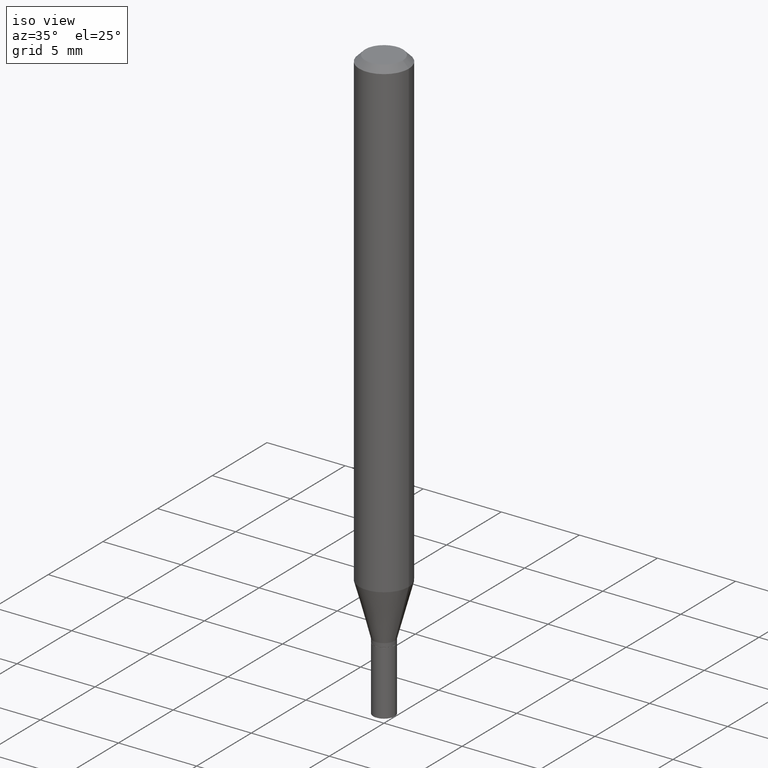
[diagram: clean part render]
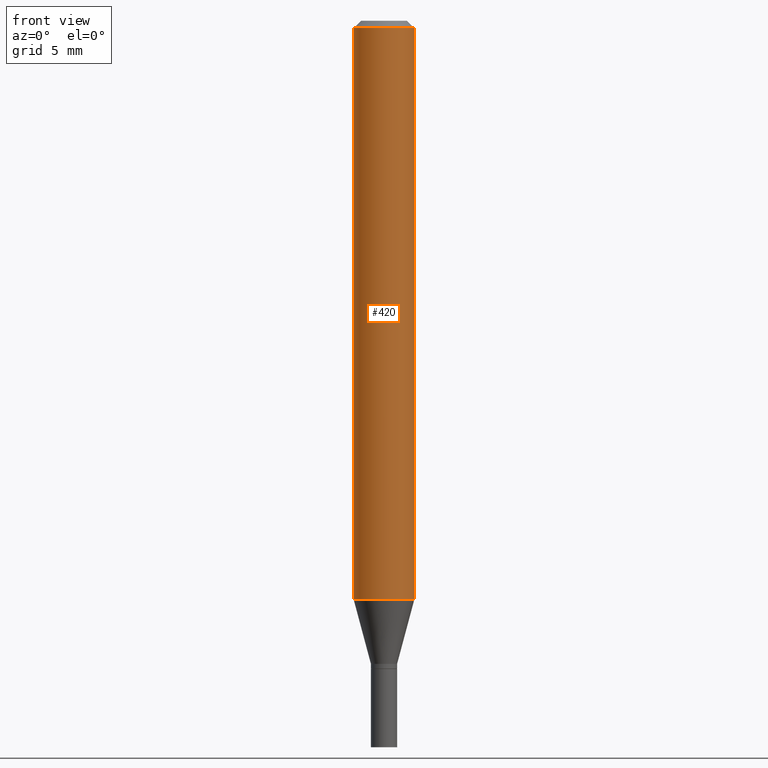
[diagram: tour spotlight — one face highlighted and labeled with its STEP entity id]
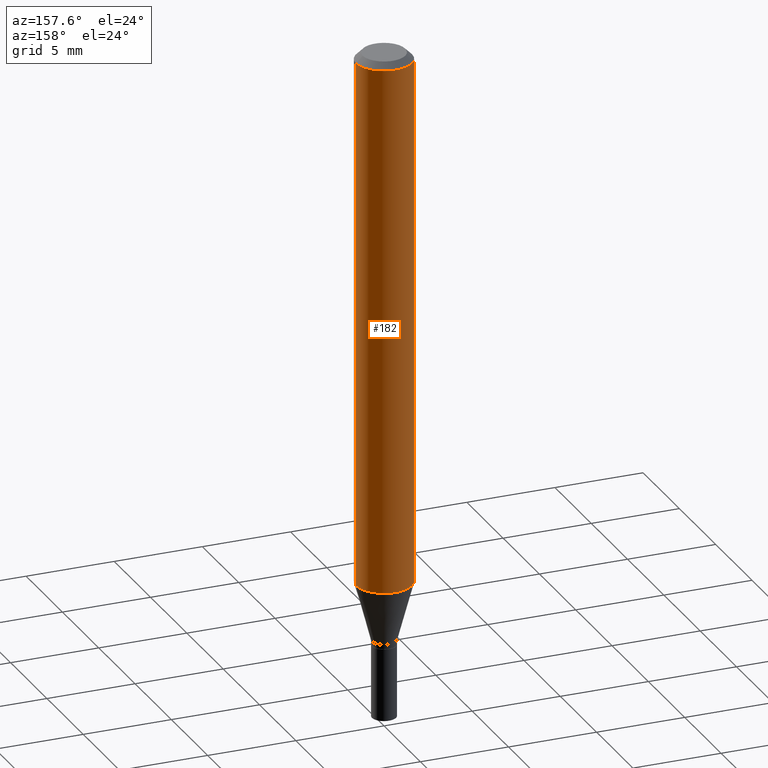
[diagram: tour spotlight — one face highlighted and labeled with its STEP entity id]
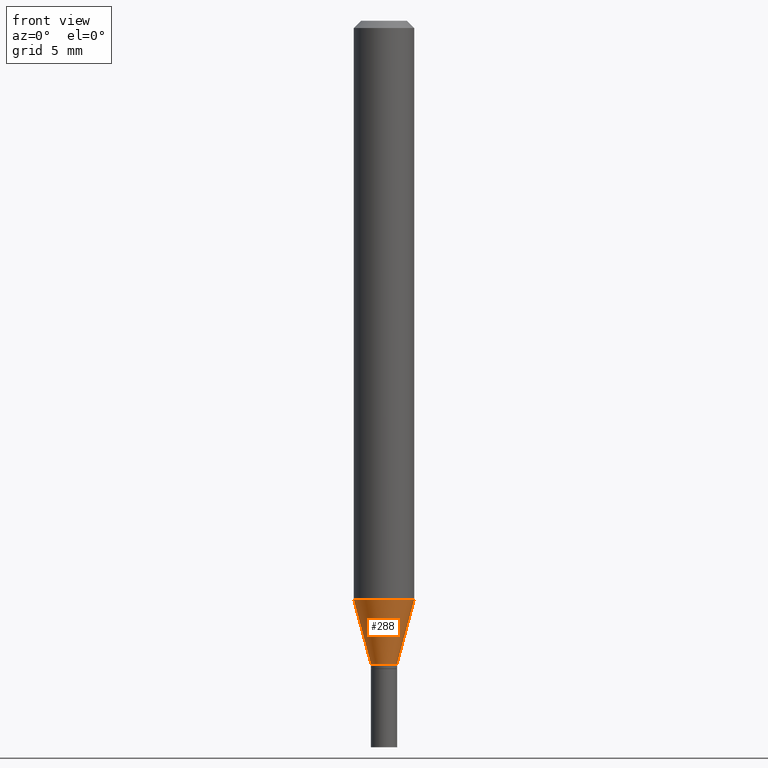
[diagram: tour spotlight — one face highlighted and labeled with its STEP entity id]
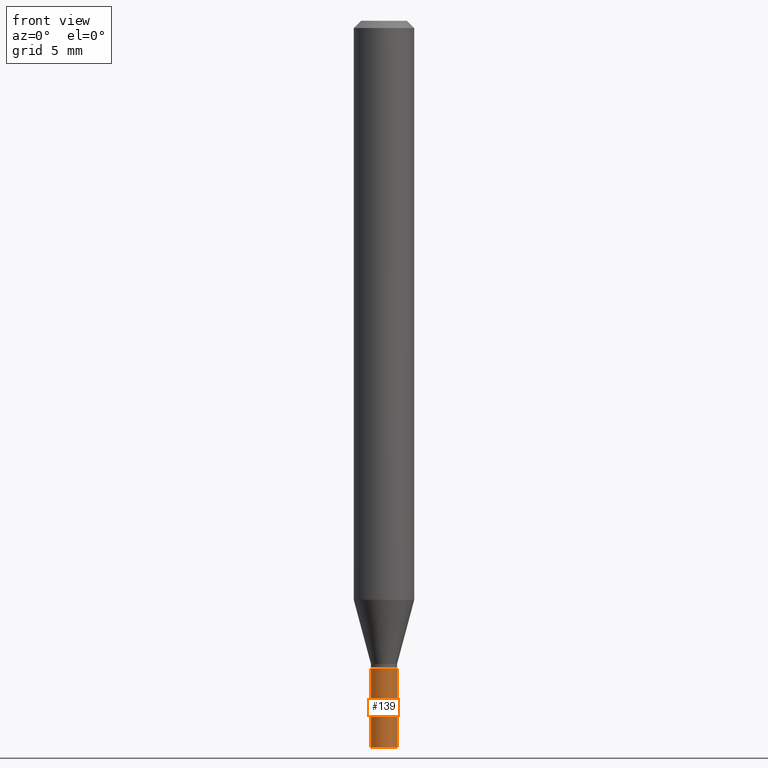
[diagram: tour spotlight — one face highlighted and labeled with its STEP entity id]
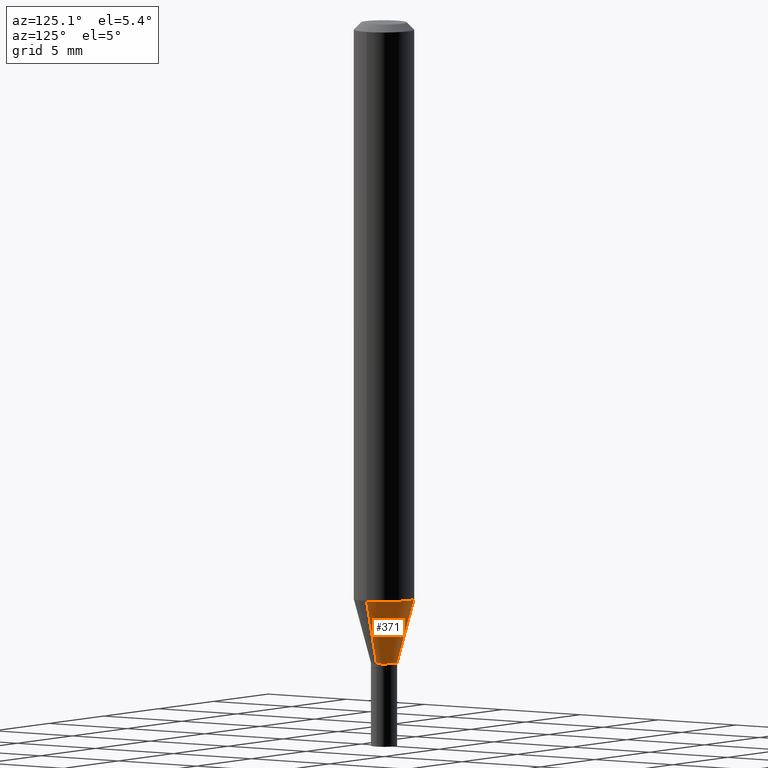
[diagram: tour spotlight — one face highlighted and labeled with its STEP entity id]
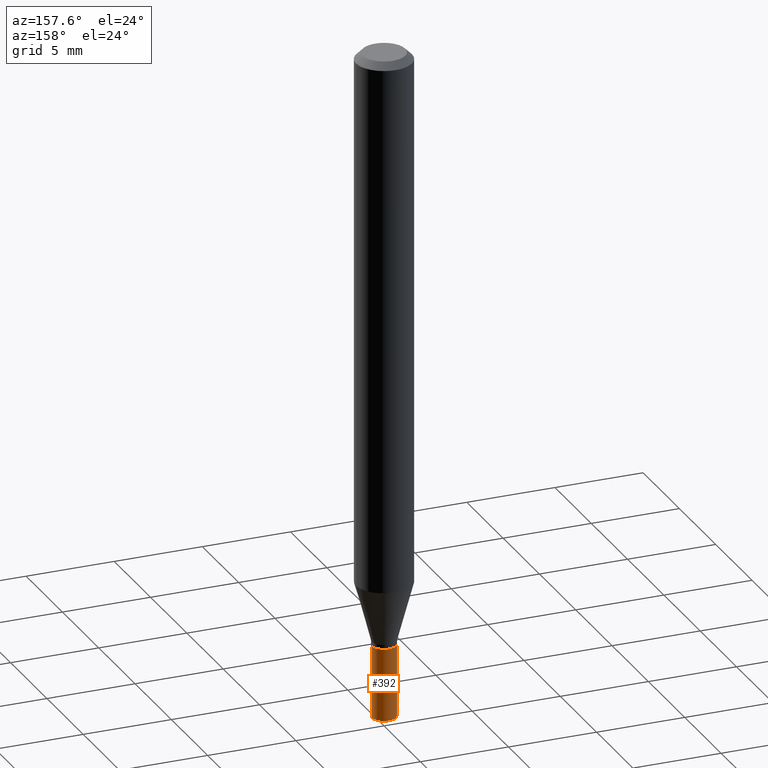
[diagram: tour spotlight — one face highlighted and labeled with its STEP entity id]
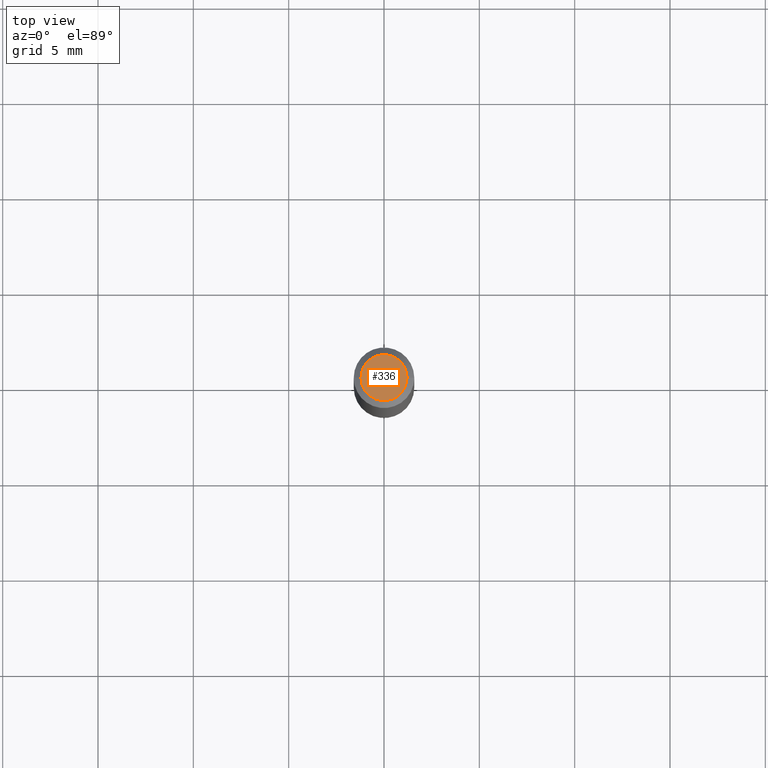
[diagram: tour spotlight — one face highlighted and labeled with its STEP entity id]
A machine part: a face-by-face anatomy tour. The part has 16 B-rep faces; the first image is the clean iso view, then the 7 largest visible faces are spotlighted one at a time (largest first), each with its STEP entity span.

Face 1 — front view, entity #420. In plain terms, the highlighted cylindrical surface (edge-blend (fillet) strip) has radius 1.5875 mm, axis along (-0, 0, 1).
Definition (entity closure, byte-faithful):
#9 = VERTEX_POINT ( 'NONE', #70 ) ;
#12 = FACE_OUTER_BOUND ( 'NONE', #453, .T. ) ;
#22 = VERTEX_POINT ( 'NONE', #149 ) ;
#24 = CYLINDRICAL_SURFACE ( 'NONE', #152, 0.06250000000000000000 ) ;
#26 = EDGE_CURVE ( 'NONE', #85, #22, #224, .T. ) ;
#27 = CIRCLE ( 'NONE', #217, 0.06250000000000000000 ) ;
#46 = EDGE_CURVE ( 'NONE', #296, #22, #461, .T. ) ;
#65 = EDGE_CURVE ( 'NONE', #9, #296, #127, .T. ) ;
#70 = CARTESIAN_POINT ( 'NONE',  ( -0.06250000000000000000, -3.730019314000071411E-15, -1.195512196331304677 ) ) ;
#79 = DIRECTION ( 'NONE',  ( 1.000000000000000000, -6.982962677686266711E-15, 4.876176775795935793E-29 ) ) ;
#85 = VERTEX_POINT ( 'NONE', #97 ) ;
#97 = CARTESIAN_POINT ( 'NONE',  ( 0.06250000000000000000, -4.610543691205524908E-15, -1.195512196331304677 ) ) ;
#119 = CARTESIAN_POINT ( 'NONE',  ( 0.000000000000000000, 0.000000000000000000, 0.000000000000000000 ) ) ;
#127 = LINE ( 'NONE', #300, #464 ) ;
#141 = DIRECTION ( 'NONE',  ( 1.000000000000000000, -6.982962677686262766E-15, 0.000000000000000000 ) ) ;
#149 = CARTESIAN_POINT ( 'NONE',  ( 0.06250000000000000000, -4.888073874380388472E-16, -0.01499999999999999944 ) ) ;
#152 = AXIS2_PLACEMENT_3D ( 'NONE', #119, #450, #79 ) ;
#173 = DIRECTION ( 'NONE',  ( 1.000000000000000000, -6.982962677686266711E-15, 0.000000000000000000 ) ) ;
#189 = ORIENTED_EDGE ( 'NONE', *, *, #46, .F. ) ;
#197 = ORIENTED_EDGE ( 'NONE', *, *, #306, .T. ) ;
#217 = AXIS2_PLACEMENT_3D ( 'NONE', #331, #460, #141 ) ;
#224 = LINE ( 'NONE', #274, #311 ) ;
#235 = CARTESIAN_POINT ( 'NONE',  ( -0.06250000000000000000, -1.669151162116327740E-15, -0.01499999999999999944 ) ) ;
#243 = DIRECTION ( 'NONE',  ( -2.445468806185136597E-29, 3.491481338843145583E-15, 1.000000000000000000 ) ) ;
#246 = AXIS2_PLACEMENT_3D ( 'NONE', #379, #243, #173 ) ;
#274 = CARTESIAN_POINT ( 'NONE',  ( 0.06250000000000000000, -4.364351673553916694E-16, 3.047610484872459871E-30 ) ) ;
#296 = VERTEX_POINT ( 'NONE', #235 ) ;
#300 = CARTESIAN_POINT ( 'NONE',  ( -0.06250000000000000000, 4.440892098500626162E-16, -3.074334431409316114E-30 ) ) ;
#306 = EDGE_CURVE ( 'NONE', #9, #85, #27, .T. ) ;
#311 = VECTOR ( 'NONE', #404, 39.37007874015748143 ) ;
#319 = ORIENTED_EDGE ( 'NONE', *, *, #26, .T. ) ;
#331 = CARTESIAN_POINT ( 'NONE',  ( 2.923587783542086622E-29, -4.174108523850133238E-15, -1.195512196331304677 ) ) ;
#379 = CARTESIAN_POINT ( 'NONE',  ( 3.668203209277705088E-31, -5.237222008264718399E-17, -0.01499999999999999944 ) ) ;
#403 = ORIENTED_EDGE ( 'NONE', *, *, #65, .F. ) ;
#404 = DIRECTION ( 'NONE',  ( -2.445468806185136877E-29, 3.491481338843145188E-15, 1.000000000000000000 ) ) ;
#420 = ADVANCED_FACE ( 'NONE', ( #12 ), #24, .T. ) ;
#425 = DIRECTION ( 'NONE',  ( -2.445468806185136877E-29, 3.491481338843145188E-15, 1.000000000000000000 ) ) ;
#450 = DIRECTION ( 'NONE',  ( -2.445468806185136597E-29, 3.491481338843145583E-15, 1.000000000000000000 ) ) ;
#453 = EDGE_LOOP ( 'NONE', ( #403, #197, #319, #189 ) ) ;
#460 = DIRECTION ( 'NONE',  ( -2.445468806185136597E-29, 3.491481338843145583E-15, 1.000000000000000000 ) ) ;
#461 = CIRCLE ( 'NONE', #246, 0.06250000000000000000 ) ;
#464 = VECTOR ( 'NONE', #425, 39.37007874015748143 ) ;

Face 2 — auxiliary view, entity #182. In plain terms, the highlighted cylindrical surface (edge-blend (fillet) strip) has radius 1.5875 mm, axis along (-0, 0, 1).
Definition (entity closure, byte-faithful):
#9 = VERTEX_POINT ( 'NONE', #70 ) ;
#22 = VERTEX_POINT ( 'NONE', #149 ) ;
#26 = EDGE_CURVE ( 'NONE', #85, #22, #224, .T. ) ;
#45 = CARTESIAN_POINT ( 'NONE',  ( 3.668203209277705088E-31, -5.237222008264718399E-17, -0.01499999999999999944 ) ) ;
#47 = ORIENTED_EDGE ( 'NONE', *, *, #65, .T. ) ;
#51 = AXIS2_PLACEMENT_3D ( 'NONE', #123, #408, #445 ) ;
#55 = DIRECTION ( 'NONE',  ( -2.445468806185136597E-29, 3.491481338843145583E-15, 1.000000000000000000 ) ) ;
#59 = DIRECTION ( 'NONE',  ( 1.000000000000000000, -6.982962677686262766E-15, 0.000000000000000000 ) ) ;
#63 = CARTESIAN_POINT ( 'NONE',  ( 2.923587783542086622E-29, -4.174108523850133238E-15, -1.195512196331304677 ) ) ;
#64 = DIRECTION ( 'NONE',  ( -2.445468806185136597E-29, 3.491481338843145583E-15, 1.000000000000000000 ) ) ;
#65 = EDGE_CURVE ( 'NONE', #9, #296, #127, .T. ) ;
#70 = CARTESIAN_POINT ( 'NONE',  ( -0.06250000000000000000, -3.730019314000071411E-15, -1.195512196331304677 ) ) ;
#76 = CIRCLE ( 'NONE', #298, 0.06250000000000000000 ) ;
#81 = DIRECTION ( 'NONE',  ( 1.000000000000000000, -6.982962677686266711E-15, 0.000000000000000000 ) ) ;
#85 = VERTEX_POINT ( 'NONE', #97 ) ;
#97 = CARTESIAN_POINT ( 'NONE',  ( 0.06250000000000000000, -4.610543691205524908E-15, -1.195512196331304677 ) ) ;
#99 = EDGE_LOOP ( 'NONE', ( #110, #47, #314, #284 ) ) ;
#110 = ORIENTED_EDGE ( 'NONE', *, *, #390, .T. ) ;
#114 = EDGE_CURVE ( 'NONE', #22, #296, #76, .T. ) ;
#123 = CARTESIAN_POINT ( 'NONE',  ( 0.000000000000000000, 0.000000000000000000, 0.000000000000000000 ) ) ;
#127 = LINE ( 'NONE', #300, #464 ) ;
#149 = CARTESIAN_POINT ( 'NONE',  ( 0.06250000000000000000, -4.888073874380388472E-16, -0.01499999999999999944 ) ) ;
#182 = ADVANCED_FACE ( 'NONE', ( #232 ), #277, .T. ) ;
#224 = LINE ( 'NONE', #274, #311 ) ;
#232 = FACE_OUTER_BOUND ( 'NONE', #99, .T. ) ;
#235 = CARTESIAN_POINT ( 'NONE',  ( -0.06250000000000000000, -1.669151162116327740E-15, -0.01499999999999999944 ) ) ;
#274 = CARTESIAN_POINT ( 'NONE',  ( 0.06250000000000000000, -4.364351673553916694E-16, 3.047610484872459871E-30 ) ) ;
#277 = CYLINDRICAL_SURFACE ( 'NONE', #51, 0.06250000000000000000 ) ;
#284 = ORIENTED_EDGE ( 'NONE', *, *, #26, .F. ) ;
#296 = VERTEX_POINT ( 'NONE', #235 ) ;
#298 = AXIS2_PLACEMENT_3D ( 'NONE', #45, #55, #81 ) ;
#300 = CARTESIAN_POINT ( 'NONE',  ( -0.06250000000000000000, 4.440892098500626162E-16, -3.074334431409316114E-30 ) ) ;
#308 = AXIS2_PLACEMENT_3D ( 'NONE', #63, #64, #59 ) ;
#311 = VECTOR ( 'NONE', #404, 39.37007874015748143 ) ;
#314 = ORIENTED_EDGE ( 'NONE', *, *, #114, .F. ) ;
#390 = EDGE_CURVE ( 'NONE', #85, #9, #452, .T. ) ;
#404 = DIRECTION ( 'NONE',  ( -2.445468806185136877E-29, 3.491481338843145188E-15, 1.000000000000000000 ) ) ;
#408 = DIRECTION ( 'NONE',  ( -2.445468806185136597E-29, 3.491481338843145583E-15, 1.000000000000000000 ) ) ;
#425 = DIRECTION ( 'NONE',  ( -2.445468806185136877E-29, 3.491481338843145188E-15, 1.000000000000000000 ) ) ;
#445 = DIRECTION ( 'NONE',  ( 1.000000000000000000, -6.982962677686266711E-15, 4.876176775795935793E-29 ) ) ;
#452 = CIRCLE ( 'NONE', #308, 0.06250000000000000000 ) ;
#464 = VECTOR ( 'NONE', #425, 39.37007874015748143 ) ;

Face 3 — front view, entity #288. In plain terms, the highlighted conical surface has half-angle 15 deg.
Definition (entity closure, byte-faithful):
#9 = VERTEX_POINT ( 'NONE', #70 ) ;
#10 = EDGE_CURVE ( 'NONE', #275, #85, #435, .T. ) ;
#27 = CIRCLE ( 'NONE', #217, 0.06250000000000000000 ) ;
#70 = CARTESIAN_POINT ( 'NONE',  ( -0.06250000000000000000, -3.730019314000071411E-15, -1.195512196331304677 ) ) ;
#82 = DIRECTION ( 'NONE',  ( -2.445468806185136597E-29, 3.491481338843145583E-15, 1.000000000000000000 ) ) ;
#85 = VERTEX_POINT ( 'NONE', #97 ) ;
#92 = DIRECTION ( 'NONE',  ( 1.000000000000000000, -6.982962677686279332E-15, 0.000000000000000000 ) ) ;
#97 = CARTESIAN_POINT ( 'NONE',  ( 0.06250000000000000000, -4.610543691205524908E-15, -1.195512196331304677 ) ) ;
#141 = DIRECTION ( 'NONE',  ( 1.000000000000000000, -6.982962677686262766E-15, 0.000000000000000000 ) ) ;
#168 = FACE_OUTER_BOUND ( 'NONE', #293, .T. ) ;
#171 = VECTOR ( 'NONE', #291, 39.37007874015748854 ) ;
#193 = EDGE_CURVE ( 'NONE', #377, #275, #229, .T. ) ;
#198 = VECTOR ( 'NONE', #270, 39.37007874015748854 ) ;
#203 = DIRECTION ( 'NONE',  ( -2.445468806185136597E-29, 3.491481338843145583E-15, 1.000000000000000000 ) ) ;
#207 = ORIENTED_EDGE ( 'NONE', *, *, #245, .F. ) ;
#216 = ORIENTED_EDGE ( 'NONE', *, *, #193, .T. ) ;
#217 = AXIS2_PLACEMENT_3D ( 'NONE', #331, #460, #141 ) ;
#220 = CARTESIAN_POINT ( 'NONE',  ( 3.247582574613861342E-29, -4.636687217983698072E-15, -1.328000000000000069 ) ) ;
#229 = CIRCLE ( 'NONE', #271, 0.02699999999999992684 ) ;
#241 = CARTESIAN_POINT ( 'NONE',  ( -0.02699999999999992684, -4.087429996664271131E-15, -1.328000000000000069 ) ) ;
#245 = EDGE_CURVE ( 'NONE', #377, #9, #356, .T. ) ;
#270 = DIRECTION ( 'NONE',  ( 0.2588190451025207395, 1.565188264969626109E-15, 0.9659258262890682012 ) ) ;
#271 = AXIS2_PLACEMENT_3D ( 'NONE', #220, #203, #92 ) ;
#275 = VERTEX_POINT ( 'NONE', #406 ) ;
#283 = CARTESIAN_POINT ( 'NONE',  ( 3.247582574613861342E-29, -4.636687217983698072E-15, -1.328000000000000069 ) ) ;
#288 = ADVANCED_FACE ( 'NONE', ( #168 ), #368, .T. ) ;
#291 = DIRECTION ( 'NONE',  ( -0.2588190451025207395, 5.211531920934546309E-15, 0.9659258262890682012 ) ) ;
#293 = EDGE_LOOP ( 'NONE', ( #207, #216, #415, #432 ) ) ;
#306 = EDGE_CURVE ( 'NONE', #9, #85, #27, .T. ) ;
#327 = CARTESIAN_POINT ( 'NONE',  ( -0.02699999999999992684, -4.444840679328471640E-15, -1.328000000000000069 ) ) ;
#331 = CARTESIAN_POINT ( 'NONE',  ( 2.923587783542086622E-29, -4.174108523850133238E-15, -1.195512196331304677 ) ) ;
#356 = LINE ( 'NONE', #327, #171 ) ;
#365 = AXIS2_PLACEMENT_3D ( 'NONE', #283, #82, #455 ) ;
#368 = CONICAL_SURFACE ( 'NONE', #365, 0.02699999999999992684, 0.2617993877991494633 ) ;
#370 = CARTESIAN_POINT ( 'NONE',  ( 0.02699999999999992684, -4.825227210281226768E-15, -1.328000000000000069 ) ) ;
#377 = VERTEX_POINT ( 'NONE', #241 ) ;
#406 = CARTESIAN_POINT ( 'NONE',  ( 0.02699999999999992684, -4.825227210281226768E-15, -1.328000000000000069 ) ) ;
#415 = ORIENTED_EDGE ( 'NONE', *, *, #10, .T. ) ;
#432 = ORIENTED_EDGE ( 'NONE', *, *, #306, .F. ) ;
#435 = LINE ( 'NONE', #370, #198 ) ;
#455 = DIRECTION ( 'NONE',  ( 1.000000000000000000, -6.982962677686279332E-15, 0.000000000000000000 ) ) ;
#460 = DIRECTION ( 'NONE',  ( -2.445468806185136597E-29, 3.491481338843145583E-15, 1.000000000000000000 ) ) ;

Face 4 — front view, entity #139. In plain terms, the highlighted cylindrical surface (edge-blend (fillet) strip) has radius 0.6858 mm, axis along (-0, 0, 1).
Definition (entity closure, byte-faithful):
#1 = VERTEX_POINT ( 'NONE', #338 ) ;
#6 = CYLINDRICAL_SURFACE ( 'NONE', #419, 0.02699999999999999969 ) ;
#13 = DIRECTION ( 'NONE',  ( 1.000000000000000000, -6.982962677686261189E-15, 0.000000000000000000 ) ) ;
#17 = ORIENTED_EDGE ( 'NONE', *, *, #21, .T. ) ;
#19 = CARTESIAN_POINT ( 'NONE',  ( 3.272037262675712888E-29, -4.671602031372128143E-15, -1.338000000000000078 ) ) ;
#21 = EDGE_CURVE ( 'NONE', #449, #38, #451, .T. ) ;
#36 = AXIS2_PLACEMENT_3D ( 'NONE', #192, #43, #13 ) ;
#38 = VERTEX_POINT ( 'NONE', #196 ) ;
#43 = DIRECTION ( 'NONE',  ( -2.445468806185136597E-29, 3.491481338843145583E-15, 1.000000000000000000 ) ) ;
#50 = EDGE_CURVE ( 'NONE', #449, #265, #94, .T. ) ;
#57 = AXIS2_PLACEMENT_3D ( 'NONE', #19, #304, #397 ) ;
#94 = LINE ( 'NONE', #352, #391 ) ;
#106 = EDGE_CURVE ( 'NONE', #38, #1, #226, .T. ) ;
#118 = FACE_OUTER_BOUND ( 'NONE', #163, .T. ) ;
#139 = ADVANCED_FACE ( 'NONE', ( #118 ), #6, .T. ) ;
#146 = EDGE_CURVE ( 'NONE', #265, #1, #340, .T. ) ;
#163 = EDGE_LOOP ( 'NONE', ( #201, #17, #359, #354 ) ) ;
#186 = DIRECTION ( 'NONE',  ( -2.445468806185136877E-29, 3.491481338843145188E-15, 1.000000000000000000 ) ) ;
#188 = CARTESIAN_POINT ( 'NONE',  ( 0.02699999999999999969, -1.885399922975291894E-16, 1.316567729464902510E-30 ) ) ;
#191 = DIRECTION ( 'NONE',  ( 1.000000000000000000, -6.982962677686266711E-15, 4.876176775795935232E-29 ) ) ;
#192 = CARTESIAN_POINT ( 'NONE',  ( 3.668203209277704895E-29, -5.237222008264718177E-15, -1.500000000000000222 ) ) ;
#196 = CARTESIAN_POINT ( 'NONE',  ( 0.02699999999999999969, -5.425762000562247662E-15, -1.500000000000000222 ) ) ;
#201 = ORIENTED_EDGE ( 'NONE', *, *, #50, .F. ) ;
#226 = LINE ( 'NONE', #188, #380 ) ;
#255 = CARTESIAN_POINT ( 'NONE',  ( -0.02699999999999999969, -4.762565481163196334E-15, -1.500000000000000222 ) ) ;
#265 = VERTEX_POINT ( 'NONE', #318 ) ;
#304 = DIRECTION ( 'NONE',  ( -2.445468806185136597E-29, 3.491481338843145583E-15, 1.000000000000000000 ) ) ;
#318 = CARTESIAN_POINT ( 'NONE',  ( -0.02699999999999999969, -4.762565481163196334E-15, -1.338000000000000078 ) ) ;
#338 = CARTESIAN_POINT ( 'NONE',  ( 0.02699999999999999969, -4.860142023669657629E-15, -1.338000000000000078 ) ) ;
#340 = CIRCLE ( 'NONE', #57, 0.02699999999999999969 ) ;
#352 = CARTESIAN_POINT ( 'NONE',  ( -0.02699999999999999969, 1.918465386552270480E-16, -1.328112474368824466E-30 ) ) ;
#354 = ORIENTED_EDGE ( 'NONE', *, *, #146, .F. ) ;
#359 = ORIENTED_EDGE ( 'NONE', *, *, #106, .T. ) ;
#378 = DIRECTION ( 'NONE',  ( -2.445468806185136597E-29, 3.491481338843145583E-15, 1.000000000000000000 ) ) ;
#380 = VECTOR ( 'NONE', #186, 39.37007874015748143 ) ;
#391 = VECTOR ( 'NONE', #447, 39.37007874015748143 ) ;
#397 = DIRECTION ( 'NONE',  ( 1.000000000000000000, -6.982962677686261189E-15, 0.000000000000000000 ) ) ;
#419 = AXIS2_PLACEMENT_3D ( 'NONE', #437, #378, #191 ) ;
#437 = CARTESIAN_POINT ( 'NONE',  ( 0.000000000000000000, 0.000000000000000000, 0.000000000000000000 ) ) ;
#447 = DIRECTION ( 'NONE',  ( -2.445468806185136877E-29, 3.491481338843145188E-15, 1.000000000000000000 ) ) ;
#449 = VERTEX_POINT ( 'NONE', #255 ) ;
#451 = CIRCLE ( 'NONE', #36, 0.02699999999999999969 ) ;

Face 5 — auxiliary view, entity #371. In plain terms, the highlighted conical surface has half-angle 15 deg.
Definition (entity closure, byte-faithful):
#9 = VERTEX_POINT ( 'NONE', #70 ) ;
#10 = EDGE_CURVE ( 'NONE', #275, #85, #435, .T. ) ;
#33 = CONICAL_SURFACE ( 'NONE', #307, 0.02699999999999992684, 0.2617993877991494633 ) ;
#58 = FACE_OUTER_BOUND ( 'NONE', #260, .T. ) ;
#59 = DIRECTION ( 'NONE',  ( 1.000000000000000000, -6.982962677686262766E-15, 0.000000000000000000 ) ) ;
#63 = CARTESIAN_POINT ( 'NONE',  ( 2.923587783542086622E-29, -4.174108523850133238E-15, -1.195512196331304677 ) ) ;
#64 = DIRECTION ( 'NONE',  ( -2.445468806185136597E-29, 3.491481338843145583E-15, 1.000000000000000000 ) ) ;
#70 = CARTESIAN_POINT ( 'NONE',  ( -0.06250000000000000000, -3.730019314000071411E-15, -1.195512196331304677 ) ) ;
#85 = VERTEX_POINT ( 'NONE', #97 ) ;
#93 = AXIS2_PLACEMENT_3D ( 'NONE', #339, #400, #112 ) ;
#97 = CARTESIAN_POINT ( 'NONE',  ( 0.06250000000000000000, -4.610543691205524908E-15, -1.195512196331304677 ) ) ;
#112 = DIRECTION ( 'NONE',  ( 1.000000000000000000, -6.982962677686279332E-15, 0.000000000000000000 ) ) ;
#124 = DIRECTION ( 'NONE',  ( 1.000000000000000000, -6.982962677686279332E-15, 0.000000000000000000 ) ) ;
#133 = ORIENTED_EDGE ( 'NONE', *, *, #245, .T. ) ;
#158 = EDGE_CURVE ( 'NONE', #275, #377, #256, .T. ) ;
#171 = VECTOR ( 'NONE', #291, 39.37007874015748854 ) ;
#198 = VECTOR ( 'NONE', #270, 39.37007874015748854 ) ;
#241 = CARTESIAN_POINT ( 'NONE',  ( -0.02699999999999992684, -4.087429996664271131E-15, -1.328000000000000069 ) ) ;
#245 = EDGE_CURVE ( 'NONE', #377, #9, #356, .T. ) ;
#256 = CIRCLE ( 'NONE', #93, 0.02699999999999992684 ) ;
#260 = EDGE_LOOP ( 'NONE', ( #343, #133, #422, #384 ) ) ;
#270 = DIRECTION ( 'NONE',  ( 0.2588190451025207395, 1.565188264969626109E-15, 0.9659258262890682012 ) ) ;
#275 = VERTEX_POINT ( 'NONE', #406 ) ;
#285 = DIRECTION ( 'NONE',  ( -2.445468806185136597E-29, 3.491481338843145583E-15, 1.000000000000000000 ) ) ;
#291 = DIRECTION ( 'NONE',  ( -0.2588190451025207395, 5.211531920934546309E-15, 0.9659258262890682012 ) ) ;
#307 = AXIS2_PLACEMENT_3D ( 'NONE', #446, #285, #124 ) ;
#308 = AXIS2_PLACEMENT_3D ( 'NONE', #63, #64, #59 ) ;
#327 = CARTESIAN_POINT ( 'NONE',  ( -0.02699999999999992684, -4.444840679328471640E-15, -1.328000000000000069 ) ) ;
#339 = CARTESIAN_POINT ( 'NONE',  ( 3.247582574613861342E-29, -4.636687217983698072E-15, -1.328000000000000069 ) ) ;
#343 = ORIENTED_EDGE ( 'NONE', *, *, #158, .T. ) ;
#356 = LINE ( 'NONE', #327, #171 ) ;
#370 = CARTESIAN_POINT ( 'NONE',  ( 0.02699999999999992684, -4.825227210281226768E-15, -1.328000000000000069 ) ) ;
#371 = ADVANCED_FACE ( 'NONE', ( #58 ), #33, .T. ) ;
#377 = VERTEX_POINT ( 'NONE', #241 ) ;
#384 = ORIENTED_EDGE ( 'NONE', *, *, #10, .F. ) ;
#390 = EDGE_CURVE ( 'NONE', #85, #9, #452, .T. ) ;
#400 = DIRECTION ( 'NONE',  ( -2.445468806185136597E-29, 3.491481338843145583E-15, 1.000000000000000000 ) ) ;
#406 = CARTESIAN_POINT ( 'NONE',  ( 0.02699999999999992684, -4.825227210281226768E-15, -1.328000000000000069 ) ) ;
#422 = ORIENTED_EDGE ( 'NONE', *, *, #390, .F. ) ;
#435 = LINE ( 'NONE', #370, #198 ) ;
#446 = CARTESIAN_POINT ( 'NONE',  ( 3.247582574613861342E-29, -4.636687217983698072E-15, -1.328000000000000069 ) ) ;
#452 = CIRCLE ( 'NONE', #308, 0.06250000000000000000 ) ;

Face 6 — auxiliary view, entity #392. In plain terms, the highlighted cylindrical surface (edge-blend (fillet) strip) has radius 0.6858 mm, axis along (-0, 0, 1).
Definition (entity closure, byte-faithful):
#1 = VERTEX_POINT ( 'NONE', #338 ) ;
#30 = CYLINDRICAL_SURFACE ( 'NONE', #105, 0.02699999999999999969 ) ;
#38 = VERTEX_POINT ( 'NONE', #196 ) ;
#44 = DIRECTION ( 'NONE',  ( 1.000000000000000000, -6.982962677686261189E-15, 0.000000000000000000 ) ) ;
#50 = EDGE_CURVE ( 'NONE', #449, #265, #94, .T. ) ;
#83 = AXIS2_PLACEMENT_3D ( 'NONE', #423, #111, #44 ) ;
#94 = LINE ( 'NONE', #352, #391 ) ;
#105 = AXIS2_PLACEMENT_3D ( 'NONE', #137, #174, #329 ) ;
#106 = EDGE_CURVE ( 'NONE', #38, #1, #226, .T. ) ;
#111 = DIRECTION ( 'NONE',  ( -2.445468806185136597E-29, 3.491481338843145583E-15, 1.000000000000000000 ) ) ;
#137 = CARTESIAN_POINT ( 'NONE',  ( 0.000000000000000000, 0.000000000000000000, 0.000000000000000000 ) ) ;
#174 = DIRECTION ( 'NONE',  ( -2.445468806185136597E-29, 3.491481338843145583E-15, 1.000000000000000000 ) ) ;
#178 = ORIENTED_EDGE ( 'NONE', *, *, #211, .T. ) ;
#186 = DIRECTION ( 'NONE',  ( -2.445468806185136877E-29, 3.491481338843145188E-15, 1.000000000000000000 ) ) ;
#188 = CARTESIAN_POINT ( 'NONE',  ( 0.02699999999999999969, -1.885399922975291894E-16, 1.316567729464902510E-30 ) ) ;
#196 = CARTESIAN_POINT ( 'NONE',  ( 0.02699999999999999969, -5.425762000562247662E-15, -1.500000000000000222 ) ) ;
#208 = FACE_OUTER_BOUND ( 'NONE', #414, .T. ) ;
#211 = EDGE_CURVE ( 'NONE', #38, #449, #312, .T. ) ;
#219 = ORIENTED_EDGE ( 'NONE', *, *, #50, .T. ) ;
#226 = LINE ( 'NONE', #188, #380 ) ;
#255 = CARTESIAN_POINT ( 'NONE',  ( -0.02699999999999999969, -4.762565481163196334E-15, -1.500000000000000222 ) ) ;
#265 = VERTEX_POINT ( 'NONE', #318 ) ;
#280 = CIRCLE ( 'NONE', #401, 0.02699999999999999969 ) ;
#286 = ORIENTED_EDGE ( 'NONE', *, *, #106, .F. ) ;
#287 = DIRECTION ( 'NONE',  ( 1.000000000000000000, -6.982962677686261189E-15, 0.000000000000000000 ) ) ;
#312 = CIRCLE ( 'NONE', #83, 0.02699999999999999969 ) ;
#318 = CARTESIAN_POINT ( 'NONE',  ( -0.02699999999999999969, -4.762565481163196334E-15, -1.338000000000000078 ) ) ;
#329 = DIRECTION ( 'NONE',  ( 1.000000000000000000, -6.982962677686266711E-15, 4.876176775795935232E-29 ) ) ;
#338 = CARTESIAN_POINT ( 'NONE',  ( 0.02699999999999999969, -4.860142023669657629E-15, -1.338000000000000078 ) ) ;
#352 = CARTESIAN_POINT ( 'NONE',  ( -0.02699999999999999969, 1.918465386552270480E-16, -1.328112474368824466E-30 ) ) ;
#363 = DIRECTION ( 'NONE',  ( -2.445468806185136597E-29, 3.491481338843145583E-15, 1.000000000000000000 ) ) ;
#380 = VECTOR ( 'NONE', #186, 39.37007874015748143 ) ;
#391 = VECTOR ( 'NONE', #447, 39.37007874015748143 ) ;
#392 = ADVANCED_FACE ( 'NONE', ( #208 ), #30, .T. ) ;
#401 = AXIS2_PLACEMENT_3D ( 'NONE', #457, #363, #287 ) ;
#411 = ORIENTED_EDGE ( 'NONE', *, *, #417, .F. ) ;
#414 = EDGE_LOOP ( 'NONE', ( #178, #219, #411, #286 ) ) ;
#417 = EDGE_CURVE ( 'NONE', #1, #265, #280, .T. ) ;
#423 = CARTESIAN_POINT ( 'NONE',  ( 3.668203209277704895E-29, -5.237222008264718177E-15, -1.500000000000000222 ) ) ;
#447 = DIRECTION ( 'NONE',  ( -2.445468806185136877E-29, 3.491481338843145188E-15, 1.000000000000000000 ) ) ;
#449 = VERTEX_POINT ( 'NONE', #255 ) ;
#457 = CARTESIAN_POINT ( 'NONE',  ( 3.272037262675712888E-29, -4.671602031372128143E-15, -1.338000000000000078 ) ) ;

Face 7 — top view, entity #336. In plain terms, the highlighted planar face has unit normal (0, -0, -1).
Definition (entity closure, byte-faithful):
#7 = EDGE_LOOP ( 'NONE', ( #116, #214 ) ) ;
#11 = DIRECTION ( 'NONE',  ( 1.000000000000000000, -6.982962677686267499E-15, 4.852736867747366768E-29 ) ) ;
#37 = AXIS2_PLACEMENT_3D ( 'NONE', #387, #412, #454 ) ;
#68 = VERTEX_POINT ( 'NONE', #108 ) ;
#96 = DIRECTION ( 'NONE',  ( 1.000000000000000000, -6.982962677686267499E-15, 4.852736867747366768E-29 ) ) ;
#108 = CARTESIAN_POINT ( 'NONE',  ( 0.04749999999999999362, -4.035134999187574186E-16, 2.354505479474186932E-16 ) ) ;
#116 = ORIENTED_EDGE ( 'NONE', *, *, #263, .T. ) ;
#131 = AXIS2_PLACEMENT_3D ( 'NONE', #386, #448, #96 ) ;
#169 = VERTEX_POINT ( 'NONE', #225 ) ;
#175 = EDGE_CURVE ( 'NONE', #68, #169, #395, .T. ) ;
#176 = FACE_OUTER_BOUND ( 'NONE', #7, .T. ) ;
#184 = AXIS2_PLACEMENT_3D ( 'NONE', #402, #348, #11 ) ;
#209 = CIRCLE ( 'NONE', #131, 0.04749999999999999362 ) ;
#214 = ORIENTED_EDGE ( 'NONE', *, *, #175, .T. ) ;
#225 = CARTESIAN_POINT ( 'NONE',  ( -0.04749999999999999362, 3.578768372314215436E-16, 2.354505479474137135E-16 ) ) ;
#252 = PLANE ( 'NONE',  #37 ) ;
#263 = EDGE_CURVE ( 'NONE', #169, #68, #209, .T. ) ;
#336 = ADVANCED_FACE ( 'NONE', ( #176 ), #252, .F. ) ;
#348 = DIRECTION ( 'NONE',  ( -2.445468806185136597E-29, 3.491481338843145583E-15, 1.000000000000000000 ) ) ;
#386 = CARTESIAN_POINT ( 'NONE',  ( -5.757869704046039586E-45, 8.220711943787967025E-31, 2.354505479474161294E-16 ) ) ;
#387 = CARTESIAN_POINT ( 'NONE',  ( 3.316907271900976096E-16, 0.04749999999999999362, -4.812008962134135024E-17 ) ) ;
#395 = CIRCLE ( 'NONE', #184, 0.04749999999999999362 ) ;
#402 = CARTESIAN_POINT ( 'NONE',  ( -5.757869704046039586E-45, 8.220711943787967025E-31, 2.354505479474161294E-16 ) ) ;
#412 = DIRECTION ( 'NONE',  ( 2.438088387897960049E-29, -3.491481338843145188E-15, -1.000000000000000000 ) ) ;
#448 = DIRECTION ( 'NONE',  ( -2.445468806185136597E-29, 3.491481338843145583E-15, 1.000000000000000000 ) ) ;
#454 = DIRECTION ( 'NONE',  ( -1.000000000000000000, 6.982962677686265922E-15, -4.876176775795935793E-29 ) ) ;